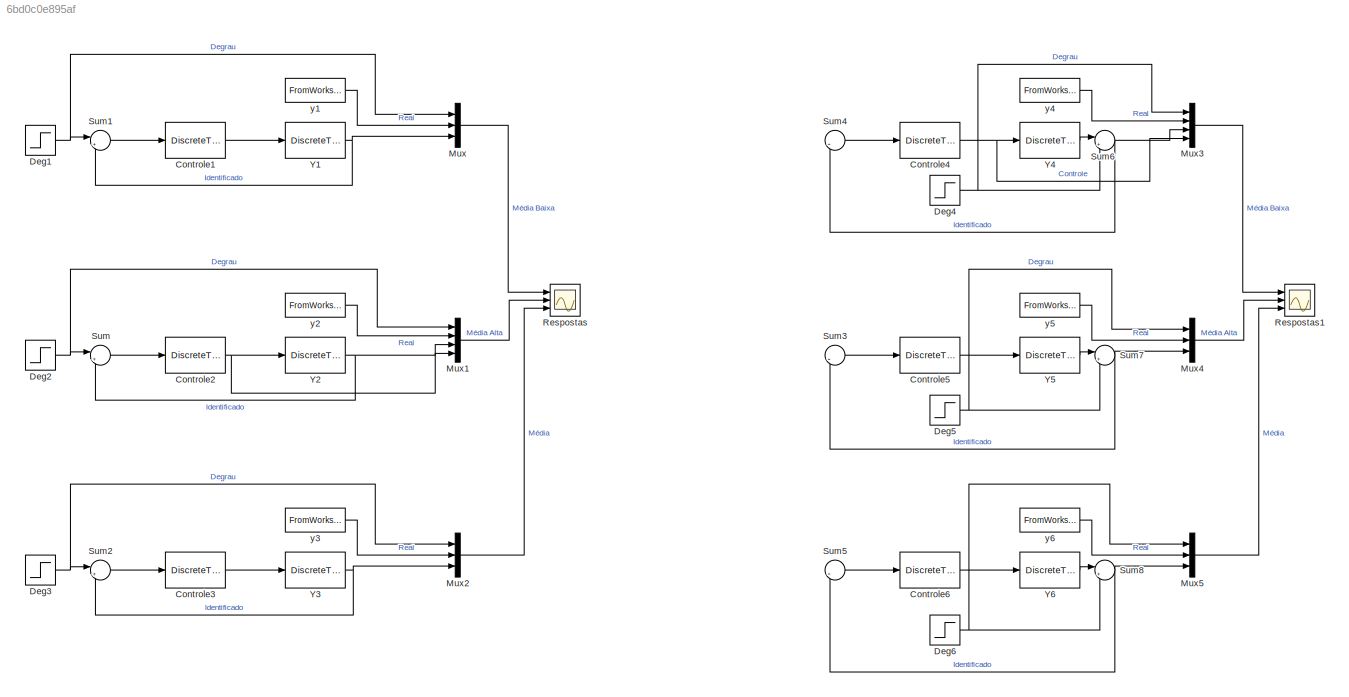
MODEL slx_6bd0c0e895af
KIND model
CONFIG AbsTol = auto
CONFIG FixedStep = auto
CONFIG MaxStep = auto
CONFIG MinStep = auto
CONFIG RelTol = 1e-3
CONFIG SampleTimeConstraint = Unconstrained
CONFIG Solver = ode45
CONFIG SolverMode = Auto
CONFIG SolverName = ode45
CONFIG StartTime = 0.0
CONFIG StopTime = t(end)
BLOCK [DiscreteTransferFcn] Controle1
  Denominator = Cz.den{1}
  InputPortMap = u0
  Numerator = Cz.num{1}
  Ports = [1, 1]
  SampleTime = T
BLOCK [DiscreteTransferFcn] Controle2
  Denominator = Cz.den{1}
  InputPortMap = u0
  Numerator = Cz.num{1}
  Ports = [1, 1]
  SampleTime = T
BLOCK [DiscreteTransferFcn] Controle3
  Denominator = Cz.den{1}
  InputPortMap = u0
  Numerator = Cz.num{1}
  Ports = [1, 1]
  SampleTime = T
BLOCK [DiscreteTransferFcn] Controle4
  Denominator = Cz.den{1}
  InputPortMap = u0
  Numerator = Cz.num{1}
  Ports = [1, 1]
  SampleTime = T
BLOCK [DiscreteTransferFcn] Controle5
  Denominator = Cz.den{1}
  InputPortMap = u0
  Numerator = Cz.num{1}
  Ports = [1, 1]
  SampleTime = T
BLOCK [DiscreteTransferFcn] Controle6
  Denominator = Cz.den{1}
  InputPortMap = u0
  Numerator = Cz.num{1}
  Ports = [1, 1]
  SampleTime = T
BLOCK [Step] Deg1
  After = 100
  SampleTime = T
  Time = 5*T
BLOCK [Step] Deg2
  After = 100
  SampleTime = T
  Time = 5*T
BLOCK [Step] Deg3
  After = 100
  SampleTime = T
  Time = 5*T
BLOCK [Step] Deg4
  After = 40
  SampleTime = T
  Time = 6*T
BLOCK [Step] Deg5
  After = 40
  SampleTime = T
  Time = 6*T
BLOCK [Step] Deg6
  After = 40
  SampleTime = T
  Time = 6*T
BLOCK [Mux] Mux
  DisplayOption = bar
  Inputs = 3
  Ports = [3, 1]
BLOCK [Mux] Mux1
  DisplayOption = bar
  Ports = [4, 1]
BLOCK [Mux] Mux2
  DisplayOption = bar
  Inputs = 3
  Ports = [3, 1]
BLOCK [Mux] Mux3
  DisplayOption = bar
  Ports = [4, 1]
BLOCK [Mux] Mux4
  DisplayOption = bar
  Inputs = 3
  Ports = [3, 1]
BLOCK [Mux] Mux5
  DisplayOption = bar
  Inputs = 3
  Ports = [3, 1]
BLOCK [Scope] Respostas
  Floating = off
  LegendLocations = 0.91441     0.90404    0.065625    0.052189\n0.91858     0.58687    0.061458    0.068013\n0.93003      0.2697        0.05    0.052189
  NumInputPorts = 3
  Ports = [3]
  ShowLegends = on
  TimeRange = 1564
  YMax = 5~5~5
  YMin = -5~-5~-5
BLOCK [Scope] Respostas1
  Floating = off
  LegendLocations = 0.91441     0.88822    0.065625    0.068013\n0.91858     0.58687    0.061458    0.052189\n0.93003      0.2697        0.05    0.052189
  NumInputPorts = 3
  Ports = [3]
  SaveName = ScopeData1
  ShowLegends = on
  YMax = 5~5~5
  YMin = -5~-5~-5
BLOCK [Sum] Sum
  IconShape = round
  InputSameDT = off
  Inputs = |+-
  OutDataTypeStr = Inherit: Inherit via internal rule
  Ports = [2, 1]
  SaturateOnIntegerOverflow = off
BLOCK [Sum] Sum1
  IconShape = round
  InputSameDT = off
  Inputs = |+-
  OutDataTypeStr = Inherit: Inherit via internal rule
  Ports = [2, 1]
  SaturateOnIntegerOverflow = off
BLOCK [Sum] Sum2
  IconShape = round
  InputSameDT = off
  Inputs = |+-
  OutDataTypeStr = Inherit: Inherit via internal rule
  Ports = [2, 1]
  SaturateOnIntegerOverflow = off
BLOCK [Sum] Sum3
  IconShape = round
  InputSameDT = off
  Inputs = |-
  OutDataTypeStr = Inherit: Inherit via internal rule
  Ports = [1, 1]
  SaturateOnIntegerOverflow = off
BLOCK [Sum] Sum4
  IconShape = round
  InputSameDT = off
  Inputs = |-
  OutDataTypeStr = Inherit: Inherit via internal rule
  Ports = [1, 1]
  SaturateOnIntegerOverflow = off
BLOCK [Sum] Sum5
  IconShape = round
  InputSameDT = off
  Inputs = |-
  OutDataTypeStr = Inherit: Inherit via internal rule
  Ports = [1, 1]
  SaturateOnIntegerOverflow = off
BLOCK [Sum] Sum6
  IconShape = round
  InputSameDT = off
  Inputs = |++
  OutDataTypeStr = Inherit: Inherit via internal rule
  Ports = [2, 1]
  SaturateOnIntegerOverflow = off
BLOCK [Sum] Sum7
  IconShape = round
  InputSameDT = off
  Inputs = |++
  OutDataTypeStr = Inherit: Inherit via internal rule
  Ports = [2, 1]
  SaturateOnIntegerOverflow = off
BLOCK [Sum] Sum8
  IconShape = round
  InputSameDT = off
  Inputs = |++
  OutDataTypeStr = Inherit: Inherit via internal rule
  Ports = [2, 1]
  SaturateOnIntegerOverflow = off
BLOCK [DiscreteTransferFcn] Y1
  Denominator = Y1.den{1}
  InputPortMap = u0
  Numerator = Y1.num{1}
  Ports = [1, 1]
  SampleTime = T
BLOCK [DiscreteTransferFcn] Y2
  Denominator = Y2.den{1}
  InputPortMap = u0
  Numerator = Y2.num{1}
  Ports = [1, 1]
  SampleTime = T
BLOCK [DiscreteTransferFcn] Y3
  Denominator = Y3.den{1}
  InputPortMap = u0
  Numerator = Y3.num{1}
  Ports = [1, 1]
  SampleTime = T
BLOCK [DiscreteTransferFcn] Y4
  Denominator = Y1.den{1}
  InputPortMap = u0
  Numerator = Y1.num{1}
  Ports = [1, 1]
  SampleTime = T
BLOCK [DiscreteTransferFcn] Y5
  Denominator = Y2.den{1}
  InputPortMap = u0
  Numerator = Y2.num{1}
  Ports = [1, 1]
  SampleTime = T
BLOCK [DiscreteTransferFcn] Y6
  Denominator = Y3.den{1}
  InputPortMap = u0
  Numerator = Y3.num{1}
  Ports = [1, 1]
  SampleTime = T
BLOCK [FromWorkspace] y1
  SampleTime = T
  VariableName = y1_data
  ZeroCross = on
BLOCK [FromWorkspace] y2
  SampleTime = T
  VariableName = y2_data
  ZeroCross = on
BLOCK [FromWorkspace] y3
  SampleTime = T
  VariableName = y3_data
  ZeroCross = on
BLOCK [FromWorkspace] y4
  SampleTime = T
  VariableName = y1_data
  ZeroCross = on
BLOCK [FromWorkspace] y5
  SampleTime = T
  VariableName = y2_data
  ZeroCross = on
BLOCK [FromWorkspace] y6
  SampleTime = T
  VariableName = y3_data
  ZeroCross = on
LINE Controle1:1 -> Y1:1
NET Controle2:1 -> Mux1:4, Y2:1
LINE Controle3:1 -> Y3:1
NET Controle4:1 -> Mux3:4, Y4:1
LINE Controle5:1 -> Y5:1
LINE Controle6:1 -> Y6:1
NET Deg1:1 -> Mux:1, Sum1:1
NET Deg2:1 -> Mux1:1, Sum:1
NET Deg3:1 -> Mux2:1, Sum2:1
NET Deg4:1 -> Mux3:1, Sum6:2
NET Deg5:1 -> Mux4:1, Sum7:2
NET Deg6:1 -> Mux5:1, Sum8:2
LINE Mux1:1 -> Respostas:2
LINE Mux2:1 -> Respostas:3
LINE Mux3:1 -> Respostas1:1
LINE Mux4:1 -> Respostas1:2
LINE Mux5:1 -> Respostas1:3
LINE Mux:1 -> Respostas:1
LINE Sum1:1 -> Controle1:1
LINE Sum2:1 -> Controle3:1
LINE Sum3:1 -> Controle5:1
LINE Sum4:1 -> Controle4:1
LINE Sum5:1 -> Controle6:1
NET Sum6:1 -> Mux3:3, Sum4:1
NET Sum7:1 -> Mux4:3, Sum3:1
NET Sum8:1 -> Mux5:3, Sum5:1
LINE Sum:1 -> Controle2:1
NET Y1:1 -> Mux:3, Sum1:2
NET Y2:1 -> Mux1:3, Sum:2
NET Y3:1 -> Mux2:3, Sum2:2
LINE Y4:1 -> Sum6:1
LINE Y5:1 -> Sum7:1
LINE Y6:1 -> Sum8:1
LINE y1:1 -> Mux:2
LINE y2:1 -> Mux1:2
LINE y3:1 -> Mux2:2
LINE y4:1 -> Mux3:2
LINE y5:1 -> Mux4:2
LINE y6:1 -> Mux5:2
note: NET lines group one-source signal fan-out (src -> all destinations, sorted); 1:1 wires keep LINE
